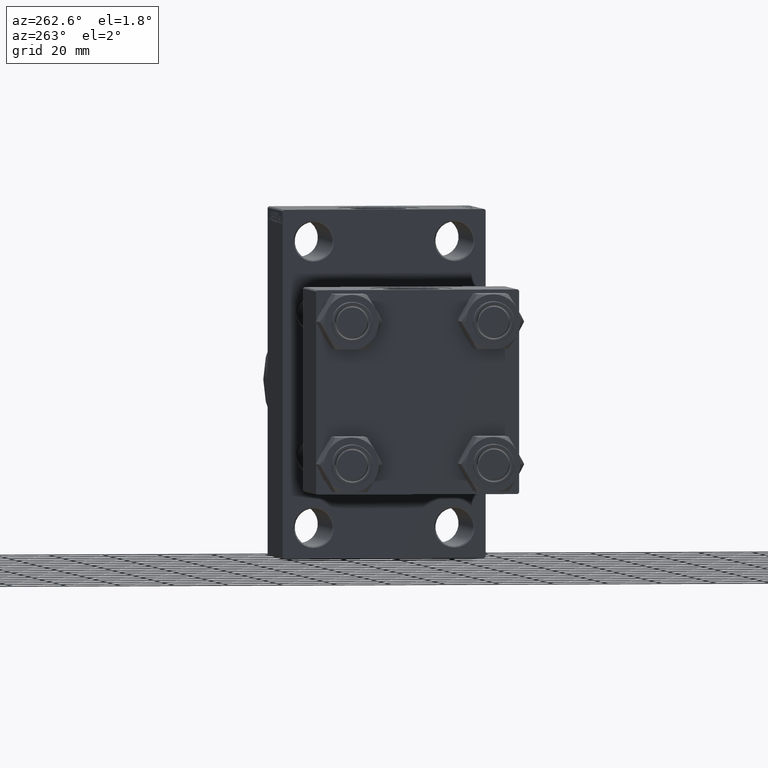
[diagram: clean part render]
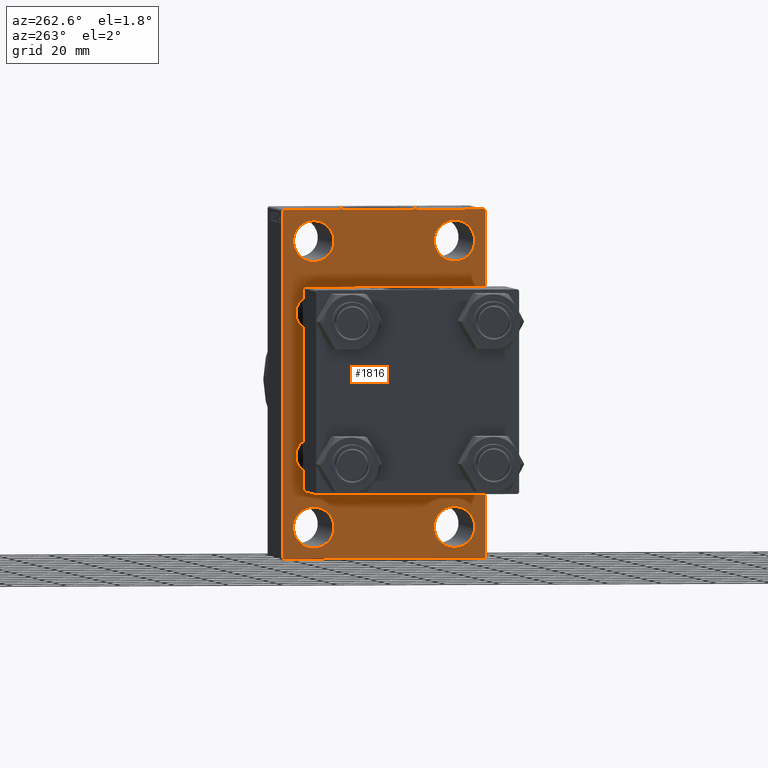
[diagram: same view with one face highlighted and labeled with its STEP entity id]
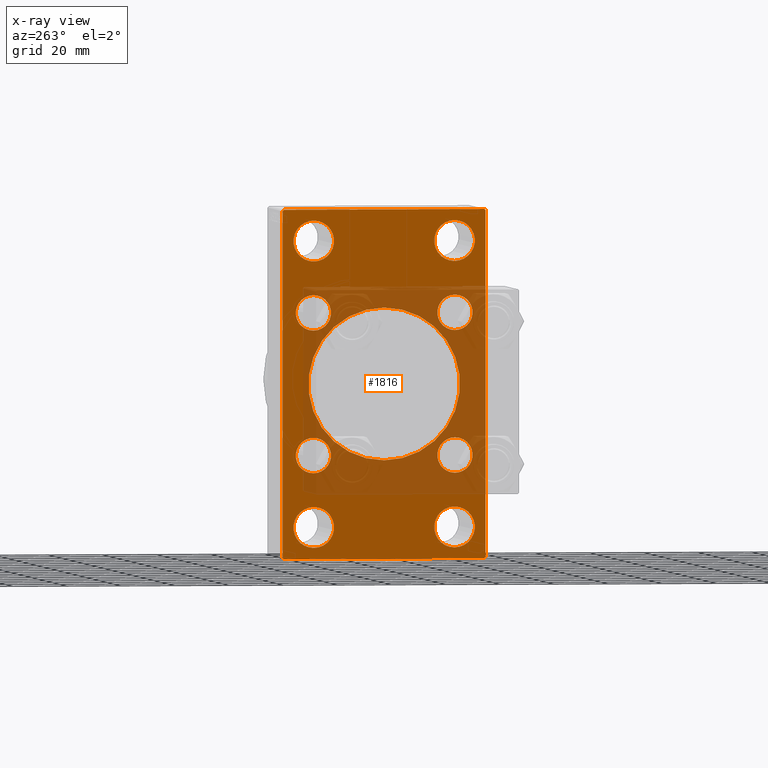
[diagram: x-ray of the same camera — body ghosted, the highlighted face saturated]
A machine part, auxiliary view. The second image highlights one B-rep face of the part: STEP entity #1816.
The next image is the same camera in x-ray: the body ghosted, the highlighted face saturated — about 37% of this face is hidden behind the body in this view.
In plain terms, the highlighted planar face has unit normal (-1, 0, 0).
Its self-contained STEP definition (entity closure, byte-faithful):
#87 = LINE ( 'NONE', #3724, #3712 ) ;
#726 = EDGE_CURVE ( 'NONE', #7090, #47654, #87, .T. ) ;
#964 = CIRCLE ( 'NONE', #43451, 7.499999999999978684 ) ;
#1087 = LINE ( 'NONE', #11727, #18468 ) ;
#1217 = EDGE_CURVE ( 'NONE', #20210, #16471, #22196, .T. ) ;
#1657 = CARTESIAN_POINT ( 'NONE',  ( 95.00000000000000000, 36.99999999999999289, -64.00000000000000000 ) ) ;
#1816 = ADVANCED_FACE ( 'NONE', ( #27403, #12649, #34894, #38269, #27642, #13368, #9509, #34653, #5651, #8786 ), #16526, .T. ) ;
#1839 = CARTESIAN_POINT ( 'NONE',  ( 95.00000000000000000, -26.14999999999999147, 19.65000000000000213 ) ) ;
#1933 = VECTOR ( 'NONE', #26165, 1000.000000000000000 ) ;
#2015 = DIRECTION ( 'NONE',  ( -0.000000000000000000, 0.000000000000000000, 1.000000000000000000 ) ) ;
#2161 = ORIENTED_EDGE ( 'NONE', *, *, #8734, .T. ) ;
#2567 = VERTEX_POINT ( 'NONE', #25179 ) ;
#2909 = DIRECTION ( 'NONE',  ( 0.000000000000000000, 0.000000000000000000, 1.000000000000000000 ) ) ;
#3048 = VERTEX_POINT ( 'NONE', #11835 ) ;
#3292 = CIRCLE ( 'NONE', #30313, 7.499999999999978684 ) ;
#3353 = DIRECTION ( 'NONE',  ( -0.000000000000000000, -0.7071067811865573427, -0.7071067811865378028 ) ) ;
#3415 = CARTESIAN_POINT ( 'NONE',  ( 95.00000000000000000, 26.14999999999999858, -19.64999999999999503 ) ) ;
#3562 = ORIENTED_EDGE ( 'NONE', *, *, #11672, .T. ) ;
#3613 = DIRECTION ( 'NONE',  ( 1.000000000000000000, -0.000000000000000000, 0.000000000000000000 ) ) ;
#3630 = VERTEX_POINT ( 'NONE', #11601 ) ;
#3712 = VECTOR ( 'NONE', #7830, 1000.000000000000000 ) ;
#3724 = CARTESIAN_POINT ( 'NONE',  ( 95.00000000000000000, 37.50000000000000000, 63.99999999999998579 ) ) ;
#4031 = EDGE_CURVE ( 'NONE', #28331, #12356, #36212, .T. ) ;
#4120 = DIRECTION ( 'NONE',  ( 0.000000000000000000, 0.000000000000000000, 1.000000000000000000 ) ) ;
#4299 = CARTESIAN_POINT ( 'NONE',  ( 95.00000000000000000, -25.99999999999999645, -45.00000000000001421 ) ) ;
#4402 = ORIENTED_EDGE ( 'NONE', *, *, #30951, .T. ) ;
#4406 = ORIENTED_EDGE ( 'NONE', *, *, #27469, .T. ) ;
#4427 = EDGE_CURVE ( 'NONE', #41715, #36803, #1087, .T. ) ;
#4570 = DIRECTION ( 'NONE',  ( 0.000000000000000000, -0.7071067811865574537, 0.7071067811865376918 ) ) ;
#5263 = AXIS2_PLACEMENT_3D ( 'NONE', #42620, #30793, #2015 ) ;
#5451 = DIRECTION ( 'NONE',  ( 0.000000000000000000, 0.000000000000000000, 1.000000000000000000 ) ) ;
#5651 = FACE_BOUND ( 'NONE', #32101, .T. ) ;
#5670 = DIRECTION ( 'NONE',  ( 1.000000000000000000, -0.000000000000000000, 0.000000000000000000 ) ) ;
#5895 = CARTESIAN_POINT ( 'NONE',  ( 95.00000000000000000, 36.99999999999997158, 63.99999999999998579 ) ) ;
#5913 = DIRECTION ( 'NONE',  ( 0.000000000000000000, 0.000000000000000000, -1.000000000000000000 ) ) ;
#6393 = CARTESIAN_POINT ( 'NONE',  ( 95.00000000000000000, -37.49999999999999289, 63.99999999999997158 ) ) ;
#6479 = CARTESIAN_POINT ( 'NONE',  ( 95.00000000000000000, -37.49999999999999289, 63.49999999999994316 ) ) ;
#6616 = DIRECTION ( 'NONE',  ( 0.000000000000000000, 0.000000000000000000, -1.000000000000000000 ) ) ;
#6811 = CARTESIAN_POINT ( 'NONE',  ( 95.00000000000000000, 37.50000000000000000, 63.49999999999998579 ) ) ;
#7090 = VERTEX_POINT ( 'NONE', #6811 ) ;
#7184 = DIRECTION ( 'NONE',  ( 0.000000000000000000, 0.000000000000000000, 1.000000000000000000 ) ) ;
#7225 = CARTESIAN_POINT ( 'NONE',  ( 95.00000000000000000, 50.49999999999948841, -50.50000000000088107 ) ) ;
#7295 = DIRECTION ( 'NONE',  ( 0.000000000000000000, 0.000000000000000000, 1.000000000000000000 ) ) ;
#7337 = VERTEX_POINT ( 'NONE', #27789 ) ;
#7455 = CARTESIAN_POINT ( 'NONE',  ( 95.00000000000000000, -25.99999999999999645, 45.00000000000002132 ) ) ;
#7550 = CARTESIAN_POINT ( 'NONE',  ( 95.00000000000000000, 26.00000000000000000, -52.49999999999999289 ) ) ;
#7620 = ORIENTED_EDGE ( 'NONE', *, *, #37969, .T. ) ;
#7689 = ORIENTED_EDGE ( 'NONE', *, *, #44195, .T. ) ;
#7830 = DIRECTION ( 'NONE',  ( 0.000000000000000000, -5.421010862427522170E-17, -1.000000000000000000 ) ) ;
#7942 = CIRCLE ( 'NONE', #17244, 6.500000000000008882 ) ;
#8385 = CARTESIAN_POINT ( 'NONE',  ( 95.00000000000000000, -50.49999999999970868, 50.50000000000040501 ) ) ;
#8494 = CIRCLE ( 'NONE', #39386, 6.500000000000008882 ) ;
#8734 = EDGE_CURVE ( 'NONE', #44433, #7337, #39494, .T. ) ;
#8786 = FACE_OUTER_BOUND ( 'NONE', #47050, .T. ) ;
#9007 = VERTEX_POINT ( 'NONE', #38956 ) ;
#9291 = LINE ( 'NONE', #6393, #27094 ) ;
#9300 = AXIS2_PLACEMENT_3D ( 'NONE', #29322, #39727, #6616 ) ;
#9498 = DIRECTION ( 'NONE',  ( 0.000000000000000000, 0.000000000000000000, 1.000000000000000000 ) ) ;
#9509 = FACE_BOUND ( 'NONE', #22943, .T. ) ;
#9802 = CARTESIAN_POINT ( 'NONE',  ( 95.00000000000000000, -26.14999999999999147, 26.15000000000000924 ) ) ;
#10016 = EDGE_LOOP ( 'NONE', ( #40310, #44618 ) ) ;
#10159 = CIRCLE ( 'NONE', #21741, 28.00000000000000000 ) ;
#10367 = EDGE_CURVE ( 'NONE', #47654, #41715, #21252, .T. ) ;
#10657 = DIRECTION ( 'NONE',  ( 0.000000000000000000, 0.000000000000000000, 1.000000000000000000 ) ) ;
#10676 = CARTESIAN_POINT ( 'NONE',  ( 95.00000000000000000, -26.14999999999999147, -26.15000000000000924 ) ) ;
#10969 = CARTESIAN_POINT ( 'NONE',  ( 95.00000000000000000, 50.49999999999894840, 50.50000000000176215 ) ) ;
#11187 = CIRCLE ( 'NONE', #45134, 6.500000000000008882 ) ;
#11554 = EDGE_CURVE ( 'NONE', #41338, #23731, #37995, .T. ) ;
#11601 = CARTESIAN_POINT ( 'NONE',  ( 95.00000000000000000, -26.14999999999999147, -19.65000000000000213 ) ) ;
#11672 = EDGE_CURVE ( 'NONE', #41552, #3630, #35704, .T. ) ;
#11680 = DIRECTION ( 'NONE',  ( 0.000000000000000000, 0.7071067811865672237, -0.7071067811865279218 ) ) ;
#11727 = CARTESIAN_POINT ( 'NONE',  ( 95.00000000000000000, 37.49999999999999289, -64.00000000000000000 ) ) ;
#11835 = CARTESIAN_POINT ( 'NONE',  ( 95.00000000000000000, -36.99999999999995737, 63.99999999999997158 ) ) ;
#12038 = CARTESIAN_POINT ( 'NONE',  ( 95.00000000000000000, 26.00000000000000000, 59.99999999999997158 ) ) ;
#12356 = VERTEX_POINT ( 'NONE', #38026 ) ;
#12635 = CARTESIAN_POINT ( 'NONE',  ( 95.00000000000000000, -26.14999999999999147, 26.15000000000000924 ) ) ;
#12649 = FACE_BOUND ( 'NONE', #19267, .T. ) ;
#12989 = DIRECTION ( 'NONE',  ( 0.000000000000000000, 0.000000000000000000, 1.000000000000000000 ) ) ;
#13227 = EDGE_LOOP ( 'NONE', ( #46210, #21282 ) ) ;
#13368 = FACE_BOUND ( 'NONE', #26935, .T. ) ;
#13580 = ORIENTED_EDGE ( 'NONE', *, *, #36989, .T. ) ;
#14552 = CARTESIAN_POINT ( 'NONE',  ( 95.00000000000000000, 26.00000000000000000, -45.00000000000001421 ) ) ;
#14768 = ORIENTED_EDGE ( 'NONE', *, *, #21304, .F. ) ;
#14787 = CARTESIAN_POINT ( 'NONE',  ( 95.00000000000000000, 37.49999999999999289, -63.50000000000001421 ) ) ;
#14899 = CARTESIAN_POINT ( 'NONE',  ( 95.00000000000000000, -26.14999999999999147, -26.15000000000000924 ) ) ;
#15602 = AXIS2_PLACEMENT_3D ( 'NONE', #7550, #33160, #37021 ) ;
#16167 = EDGE_CURVE ( 'NONE', #12356, #28331, #964, .T. ) ;
#16385 = DIRECTION ( 'NONE',  ( 1.000000000000000000, -0.000000000000000000, 0.000000000000000000 ) ) ;
#16471 = VERTEX_POINT ( 'NONE', #12038 ) ;
#16526 = PLANE ( 'NONE',  #5263 ) ;
#16743 = VERTEX_POINT ( 'NONE', #37609 ) ;
#16879 = EDGE_CURVE ( 'NONE', #23731, #41338, #28802, .T. ) ;
#17140 = VECTOR ( 'NONE', #3353, 1000.000000000000000 ) ;
#17244 = AXIS2_PLACEMENT_3D ( 'NONE', #14899, #30366, #26727 ) ;
#17707 = CARTESIAN_POINT ( 'NONE',  ( 95.00000000000000000, -2.602085213965210642E-15, 0.000000000000000000 ) ) ;
#18088 = AXIS2_PLACEMENT_3D ( 'NONE', #43772, #39675, #10657 ) ;
#18255 = ORIENTED_EDGE ( 'NONE', *, *, #28041, .T. ) ;
#18430 = LINE ( 'NONE', #23000, #1933 ) ;
#18468 = VECTOR ( 'NONE', #26486, 1000.000000000000000 ) ;
#18734 = ORIENTED_EDGE ( 'NONE', *, *, #25698, .T. ) ;
#18737 = ORIENTED_EDGE ( 'NONE', *, *, #21782, .T. ) ;
#18763 = EDGE_LOOP ( 'NONE', ( #42042, #41952 ) ) ;
#19169 = LINE ( 'NONE', #10969, #38230 ) ;
#19267 = EDGE_LOOP ( 'NONE', ( #2161, #13580 ) ) ;
#20210 = VERTEX_POINT ( 'NONE', #34178 ) ;
#20359 = AXIS2_PLACEMENT_3D ( 'NONE', #36007, #46888, #46641 ) ;
#20802 = DIRECTION ( 'NONE',  ( 0.000000000000000000, 0.000000000000000000, 1.000000000000000000 ) ) ;
#20951 = AXIS2_PLACEMENT_3D ( 'NONE', #46028, #5670, #28388 ) ;
#21063 = EDGE_CURVE ( 'NONE', #46613, #9007, #11187, .T. ) ;
#21252 = LINE ( 'NONE', #7225, #17140 ) ;
#21282 = ORIENTED_EDGE ( 'NONE', *, *, #16879, .T. ) ;
#21304 = EDGE_CURVE ( 'NONE', #26147, #3048, #18430, .T. ) ;
#21549 = DIRECTION ( 'NONE',  ( 1.000000000000000000, -0.000000000000000000, 0.000000000000000000 ) ) ;
#21741 = AXIS2_PLACEMENT_3D ( 'NONE', #17707, #24475, #47176 ) ;
#21782 = EDGE_CURVE ( 'NONE', #26147, #7090, #19169, .T. ) ;
#22023 = DIRECTION ( 'NONE',  ( 0.000000000000000000, 0.000000000000000000, 1.000000000000000000 ) ) ;
#22170 = DIRECTION ( 'NONE',  ( 0.000000000000000000, 0.000000000000000000, 1.000000000000000000 ) ) ;
#22196 = CIRCLE ( 'NONE', #25301, 7.499999999999978684 ) ;
#22252 = ORIENTED_EDGE ( 'NONE', *, *, #4427, .T. ) ;
#22943 = EDGE_LOOP ( 'NONE', ( #36898, #4402 ) ) ;
#23000 = CARTESIAN_POINT ( 'NONE',  ( 95.00000000000000000, 37.50000000000000000, 63.99999999999998579 ) ) ;
#23132 = DIRECTION ( 'NONE',  ( 1.000000000000000000, -0.000000000000000000, 0.000000000000000000 ) ) ;
#23286 = ORIENTED_EDGE ( 'NONE', *, *, #35073, .T. ) ;
#23492 = CIRCLE ( 'NONE', #18088, 7.499999999999978684 ) ;
#23731 = VERTEX_POINT ( 'NONE', #1839 ) ;
#24136 = ORIENTED_EDGE ( 'NONE', *, *, #10367, .T. ) ;
#24475 = DIRECTION ( 'NONE',  ( 1.000000000000000000, 0.000000000000000000, 0.000000000000000000 ) ) ;
#24888 = AXIS2_PLACEMENT_3D ( 'NONE', #10676, #21549, #7295 ) ;
#24953 = AXIS2_PLACEMENT_3D ( 'NONE', #9802, #38558, #5451 ) ;
#25016 = AXIS2_PLACEMENT_3D ( 'NONE', #44716, #30221, #4120 ) ;
#25179 = CARTESIAN_POINT ( 'NONE',  ( 95.00000000000000000, 26.14999999999999858, -32.65000000000001279 ) ) ;
#25301 = AXIS2_PLACEMENT_3D ( 'NONE', #44147, #29179, #7184 ) ;
#25698 = EDGE_CURVE ( 'NONE', #36803, #31018, #37912, .T. ) ;
#25904 = ORIENTED_EDGE ( 'NONE', *, *, #21063, .T. ) ;
#26147 = VERTEX_POINT ( 'NONE', #5895 ) ;
#26165 = DIRECTION ( 'NONE',  ( 0.000000000000000000, -1.000000000000000000, -1.850371707708594563E-16 ) ) ;
#26237 = CIRCLE ( 'NONE', #32417, 6.500000000000008882 ) ;
#26386 = EDGE_LOOP ( 'NONE', ( #7620, #3562 ) ) ;
#26432 = EDGE_LOOP ( 'NONE', ( #23286, #36056 ) ) ;
#26486 = DIRECTION ( 'NONE',  ( 0.000000000000000000, -1.000000000000000000, -1.850371707708594563E-16 ) ) ;
#26727 = DIRECTION ( 'NONE',  ( 0.000000000000000000, 0.000000000000000000, 1.000000000000000000 ) ) ;
#26935 = EDGE_LOOP ( 'NONE', ( #25904, #7689 ) ) ;
#27094 = VECTOR ( 'NONE', #5913, 1000.000000000000000 ) ;
#27403 = FACE_BOUND ( 'NONE', #18763, .T. ) ;
#27469 = EDGE_CURVE ( 'NONE', #31341, #3048, #38107, .T. ) ;
#27642 = FACE_BOUND ( 'NONE', #13227, .T. ) ;
#27789 = CARTESIAN_POINT ( 'NONE',  ( 95.00000000000000000, -25.99999999999999645, -59.99999999999997158 ) ) ;
#28041 = EDGE_CURVE ( 'NONE', #16743, #37604, #28599, .T. ) ;
#28331 = VERTEX_POINT ( 'NONE', #7455 ) ;
#28344 = VECTOR ( 'NONE', #4570, 999.9999999999998863 ) ;
#28388 = DIRECTION ( 'NONE',  ( 0.000000000000000000, 0.000000000000000000, 1.000000000000000000 ) ) ;
#28599 = CIRCLE ( 'NONE', #9300, 28.00000000000000000 ) ;
#28773 = EDGE_CURVE ( 'NONE', #31341, #31018, #9291, .T. ) ;
#28802 = CIRCLE ( 'NONE', #24953, 6.500000000000008882 ) ;
#28938 = VERTEX_POINT ( 'NONE', #45489 ) ;
#29179 = DIRECTION ( 'NONE',  ( 1.000000000000000000, -0.000000000000000000, 0.000000000000000000 ) ) ;
#29252 = CARTESIAN_POINT ( 'NONE',  ( 95.00000000000000000, -26.14999999999999147, -32.65000000000001990 ) ) ;
#29282 = AXIS2_PLACEMENT_3D ( 'NONE', #38362, #23132, #41993 ) ;
#29322 = CARTESIAN_POINT ( 'NONE',  ( 95.00000000000000000, -2.602085213965210642E-15, 0.000000000000000000 ) ) ;
#30221 = DIRECTION ( 'NONE',  ( 1.000000000000000000, -0.000000000000000000, 0.000000000000000000 ) ) ;
#30234 = VERTEX_POINT ( 'NONE', #3415 ) ;
#30313 = AXIS2_PLACEMENT_3D ( 'NONE', #46103, #16385, #12989 ) ;
#30366 = DIRECTION ( 'NONE',  ( 1.000000000000000000, -0.000000000000000000, 0.000000000000000000 ) ) ;
#30461 = EDGE_CURVE ( 'NONE', #30234, #2567, #26237, .T. ) ;
#30681 = CARTESIAN_POINT ( 'NONE',  ( 95.00000000000000000, -50.49999999999945999, -50.50000000000086686 ) ) ;
#30793 = DIRECTION ( 'NONE',  ( -1.000000000000000000, 0.000000000000000000, -0.000000000000000000 ) ) ;
#30866 = DIRECTION ( 'NONE',  ( -0.000000000000000000, 0.7071067811865524577, 0.7071067811865426878 ) ) ;
#30915 = CARTESIAN_POINT ( 'NONE',  ( 95.00000000000000000, 26.14999999999999858, 32.65000000000001990 ) ) ;
#30951 = EDGE_CURVE ( 'NONE', #2567, #30234, #8494, .T. ) ;
#31018 = VERTEX_POINT ( 'NONE', #43966 ) ;
#31341 = VERTEX_POINT ( 'NONE', #6479 ) ;
#31718 = VERTEX_POINT ( 'NONE', #14552 ) ;
#31970 = CIRCLE ( 'NONE', #20359, 7.499999999999978684 ) ;
#31979 = CARTESIAN_POINT ( 'NONE',  ( 95.00000000000000000, 26.14999999999999858, -26.15000000000000213 ) ) ;
#32101 = EDGE_LOOP ( 'NONE', ( #18255, #44737 ) ) ;
#32417 = AXIS2_PLACEMENT_3D ( 'NONE', #31979, #45753, #9498 ) ;
#33160 = DIRECTION ( 'NONE',  ( 1.000000000000000000, -0.000000000000000000, 0.000000000000000000 ) ) ;
#33902 = EDGE_CURVE ( 'NONE', #37604, #16743, #10159, .T. ) ;
#34178 = CARTESIAN_POINT ( 'NONE',  ( 95.00000000000000000, 26.00000000000000000, 45.00000000000001421 ) ) ;
#34653 = FACE_BOUND ( 'NONE', #26386, .T. ) ;
#34805 = CARTESIAN_POINT ( 'NONE',  ( 95.00000000000000000, -36.99999999999993605, -64.00000000000001421 ) ) ;
#34894 = FACE_BOUND ( 'NONE', #26432, .T. ) ;
#35073 = EDGE_CURVE ( 'NONE', #31718, #28938, #37200, .T. ) ;
#35704 = CIRCLE ( 'NONE', #24888, 6.500000000000008882 ) ;
#36007 = CARTESIAN_POINT ( 'NONE',  ( 95.00000000000000000, 26.00000000000000000, 52.49999999999999289 ) ) ;
#36056 = ORIENTED_EDGE ( 'NONE', *, *, #44094, .T. ) ;
#36212 = CIRCLE ( 'NONE', #29282, 7.499999999999978684 ) ;
#36436 = DIRECTION ( 'NONE',  ( 1.000000000000000000, -0.000000000000000000, 0.000000000000000000 ) ) ;
#36803 = VERTEX_POINT ( 'NONE', #34805 ) ;
#36898 = ORIENTED_EDGE ( 'NONE', *, *, #30461, .T. ) ;
#36989 = EDGE_CURVE ( 'NONE', #7337, #44433, #3292, .T. ) ;
#37021 = DIRECTION ( 'NONE',  ( 0.000000000000000000, 0.000000000000000000, 1.000000000000000000 ) ) ;
#37147 = CARTESIAN_POINT ( 'NONE',  ( 95.00000000000000000, 26.14999999999999858, 26.15000000000000213 ) ) ;
#37200 = CIRCLE ( 'NONE', #15602, 7.499999999999978684 ) ;
#37604 = VERTEX_POINT ( 'NONE', #45275 ) ;
#37609 = CARTESIAN_POINT ( 'NONE',  ( 95.00000000000000000, -2.602085213965210642E-15, 28.00000000000000000 ) ) ;
#37912 = LINE ( 'NONE', #30681, #28344 ) ;
#37969 = EDGE_CURVE ( 'NONE', #3630, #41552, #7942, .T. ) ;
#37995 = CIRCLE ( 'NONE', #44968, 6.500000000000008882 ) ;
#38026 = CARTESIAN_POINT ( 'NONE',  ( 95.00000000000000000, -25.99999999999999645, 59.99999999999997868 ) ) ;
#38107 = LINE ( 'NONE', #8385, #40934 ) ;
#38230 = VECTOR ( 'NONE', #11680, 1000.000000000000000 ) ;
#38244 = ORIENTED_EDGE ( 'NONE', *, *, #726, .T. ) ;
#38269 = FACE_BOUND ( 'NONE', #10016, .T. ) ;
#38362 = CARTESIAN_POINT ( 'NONE',  ( 95.00000000000000000, -25.99999999999999645, 52.50000000000000000 ) ) ;
#38460 = CARTESIAN_POINT ( 'NONE',  ( 95.00000000000000000, -25.99999999999999645, 52.50000000000000000 ) ) ;
#38558 = DIRECTION ( 'NONE',  ( 1.000000000000000000, -0.000000000000000000, 0.000000000000000000 ) ) ;
#38943 = DIRECTION ( 'NONE',  ( 1.000000000000000000, -0.000000000000000000, 0.000000000000000000 ) ) ;
#38956 = CARTESIAN_POINT ( 'NONE',  ( 95.00000000000000000, 26.14999999999999858, 19.64999999999999147 ) ) ;
#39386 = AXIS2_PLACEMENT_3D ( 'NONE', #43505, #3613, #2909 ) ;
#39494 = CIRCLE ( 'NONE', #20951, 7.499999999999978684 ) ;
#39675 = DIRECTION ( 'NONE',  ( 1.000000000000000000, -0.000000000000000000, 0.000000000000000000 ) ) ;
#39685 = EDGE_CURVE ( 'NONE', #16471, #20210, #31970, .T. ) ;
#39727 = DIRECTION ( 'NONE',  ( 1.000000000000000000, 0.000000000000000000, 0.000000000000000000 ) ) ;
#40310 = ORIENTED_EDGE ( 'NONE', *, *, #39685, .T. ) ;
#40934 = VECTOR ( 'NONE', #30866, 1000.000000000000000 ) ;
#41192 = CARTESIAN_POINT ( 'NONE',  ( 95.00000000000000000, -26.14999999999999147, 32.65000000000001990 ) ) ;
#41338 = VERTEX_POINT ( 'NONE', #41192 ) ;
#41552 = VERTEX_POINT ( 'NONE', #29252 ) ;
#41715 = VERTEX_POINT ( 'NONE', #1657 ) ;
#41952 = ORIENTED_EDGE ( 'NONE', *, *, #4031, .T. ) ;
#41993 = DIRECTION ( 'NONE',  ( 0.000000000000000000, 0.000000000000000000, 1.000000000000000000 ) ) ;
#42042 = ORIENTED_EDGE ( 'NONE', *, *, #16167, .T. ) ;
#42366 = DIRECTION ( 'NONE',  ( 1.000000000000000000, -0.000000000000000000, 0.000000000000000000 ) ) ;
#42620 = CARTESIAN_POINT ( 'NONE',  ( 95.00000000000000000, 0.000000000000000000, 0.000000000000000000 ) ) ;
#43451 = AXIS2_PLACEMENT_3D ( 'NONE', #38460, #38943, #20802 ) ;
#43505 = CARTESIAN_POINT ( 'NONE',  ( 95.00000000000000000, 26.14999999999999858, -26.15000000000000213 ) ) ;
#43772 = CARTESIAN_POINT ( 'NONE',  ( 95.00000000000000000, 26.00000000000000000, -52.49999999999999289 ) ) ;
#43966 = CARTESIAN_POINT ( 'NONE',  ( 95.00000000000000000, -37.49999999999999289, -63.49999999999997158 ) ) ;
#44094 = EDGE_CURVE ( 'NONE', #28938, #31718, #23492, .T. ) ;
#44147 = CARTESIAN_POINT ( 'NONE',  ( 95.00000000000000000, 26.00000000000000000, 52.49999999999999289 ) ) ;
#44195 = EDGE_CURVE ( 'NONE', #9007, #46613, #47401, .T. ) ;
#44433 = VERTEX_POINT ( 'NONE', #4299 ) ;
#44618 = ORIENTED_EDGE ( 'NONE', *, *, #1217, .T. ) ;
#44716 = CARTESIAN_POINT ( 'NONE',  ( 95.00000000000000000, 26.14999999999999858, 26.15000000000000213 ) ) ;
#44737 = ORIENTED_EDGE ( 'NONE', *, *, #33902, .T. ) ;
#44968 = AXIS2_PLACEMENT_3D ( 'NONE', #12635, #42366, #22023 ) ;
#45134 = AXIS2_PLACEMENT_3D ( 'NONE', #37147, #36436, #22170 ) ;
#45275 = CARTESIAN_POINT ( 'NONE',  ( 95.00000000000000000, 8.269258236473776482E-16, -28.00000000000000000 ) ) ;
#45449 = ORIENTED_EDGE ( 'NONE', *, *, #28773, .F. ) ;
#45489 = CARTESIAN_POINT ( 'NONE',  ( 95.00000000000000000, 26.00000000000000000, -59.99999999999997158 ) ) ;
#45753 = DIRECTION ( 'NONE',  ( 1.000000000000000000, -0.000000000000000000, 0.000000000000000000 ) ) ;
#46028 = CARTESIAN_POINT ( 'NONE',  ( 95.00000000000000000, -25.99999999999999645, -52.49999999999999289 ) ) ;
#46103 = CARTESIAN_POINT ( 'NONE',  ( 95.00000000000000000, -25.99999999999999645, -52.49999999999999289 ) ) ;
#46210 = ORIENTED_EDGE ( 'NONE', *, *, #11554, .T. ) ;
#46613 = VERTEX_POINT ( 'NONE', #30915 ) ;
#46641 = DIRECTION ( 'NONE',  ( 0.000000000000000000, 0.000000000000000000, 1.000000000000000000 ) ) ;
#46888 = DIRECTION ( 'NONE',  ( 1.000000000000000000, -0.000000000000000000, 0.000000000000000000 ) ) ;
#47050 = EDGE_LOOP ( 'NONE', ( #22252, #18734, #45449, #4406, #14768, #18737, #38244, #24136 ) ) ;
#47176 = DIRECTION ( 'NONE',  ( 0.000000000000000000, 0.000000000000000000, -1.000000000000000000 ) ) ;
#47401 = CIRCLE ( 'NONE', #25016, 6.500000000000008882 ) ;
#47654 = VERTEX_POINT ( 'NONE', #14787 ) ;